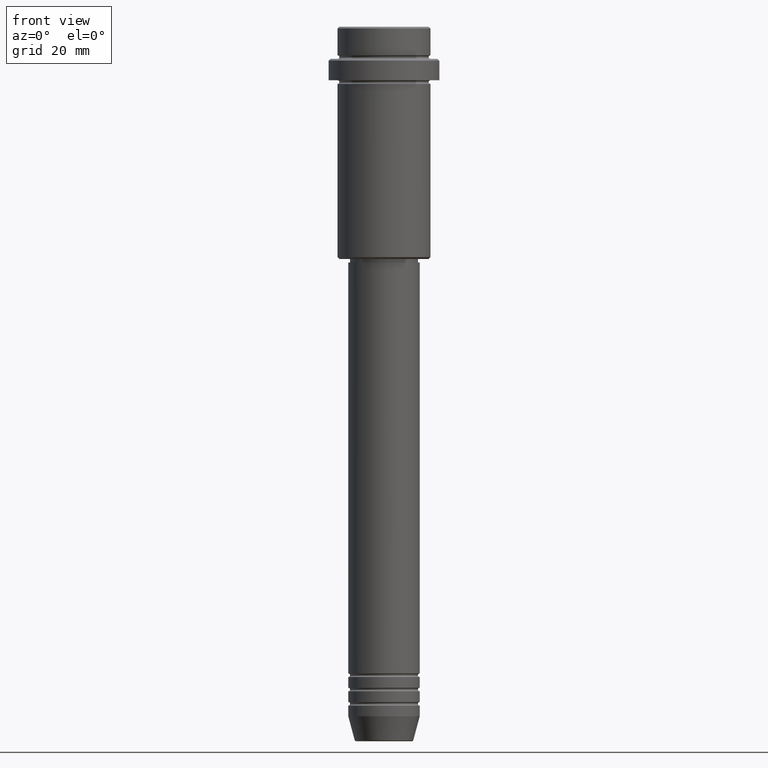
[diagram: clean part render]
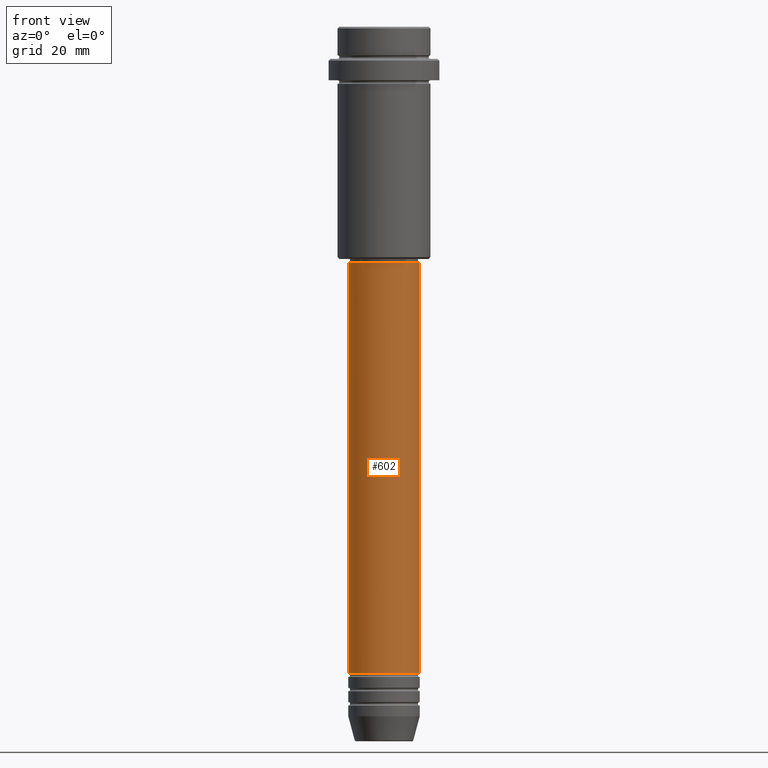
[diagram: same view with one face highlighted and labeled with its STEP entity id]
A machine part, front view. The second image highlights one B-rep face of the part: STEP entity #602.
In plain terms, the highlighted cylindrical surface (edge-blend (fillet) strip) has radius 10 mm, axis along (-0, -0, 1).
Its self-contained STEP definition (entity closure, byte-faithful):
#19 = VERTEX_POINT ( 'NONE', #1144 ) ;
#33 = ORIENTED_EDGE ( 'NONE', *, *, #294, .F. ) ;
#123 = CARTESIAN_POINT ( 'NONE',  ( -10.00000000000000178, 1.224646799147353454E-15, -66.00000000000000000 ) ) ;
#134 = EDGE_CURVE ( 'NONE', #565, #689, #1094, .T. ) ;
#159 = LINE ( 'NONE', #1037, #1024 ) ;
#218 = ORIENTED_EDGE ( 'NONE', *, *, #339, .F. ) ;
#282 = CARTESIAN_POINT ( 'NONE',  ( 10.00000000000000000, 0.000000000000000000, -180.9999999999999147 ) ) ;
#294 = EDGE_CURVE ( 'NONE', #565, #1334, #159, .T. ) ;
#314 = AXIS2_PLACEMENT_3D ( 'NONE', #1409, #422, #1414 ) ;
#339 = EDGE_CURVE ( 'NONE', #1334, #19, #1317, .T. ) ;
#372 = CARTESIAN_POINT ( 'NONE',  ( -10.00000000000000000, 1.224646799147353256E-15, -180.9999999999999147 ) ) ;
#411 = DIRECTION ( 'NONE',  ( -0.000000000000000000, -0.000000000000000000, 1.000000000000000000 ) ) ;
#422 = DIRECTION ( 'NONE',  ( -0.000000000000000000, -0.000000000000000000, 1.000000000000000000 ) ) ;
#440 = DIRECTION ( 'NONE',  ( -0.000000000000000000, -0.000000000000000000, 1.000000000000000000 ) ) ;
#505 = CARTESIAN_POINT ( 'NONE',  ( 0.000000000000000000, 0.000000000000000000, -66.00000000000000000 ) ) ;
#546 = AXIS2_PLACEMENT_3D ( 'NONE', #626, #411, #1258 ) ;
#565 = VERTEX_POINT ( 'NONE', #372 ) ;
#602 = ADVANCED_FACE ( 'NONE', ( #656 ), #666, .T. ) ;
#626 = CARTESIAN_POINT ( 'NONE',  ( 0.000000000000000000, 0.000000000000000000, 0.000000000000000000 ) ) ;
#654 = LINE ( 'NONE', #1315, #934 ) ;
#656 = FACE_OUTER_BOUND ( 'NONE', #766, .T. ) ;
#666 = CYLINDRICAL_SURFACE ( 'NONE', #546, 10.00000000000000178 ) ;
#689 = VERTEX_POINT ( 'NONE', #282 ) ;
#766 = EDGE_LOOP ( 'NONE', ( #33, #1234, #1015, #218 ) ) ;
#894 = EDGE_CURVE ( 'NONE', #689, #19, #654, .T. ) ;
#934 = VECTOR ( 'NONE', #440, 1000.000000000000000 ) ;
#1015 = ORIENTED_EDGE ( 'NONE', *, *, #894, .T. ) ;
#1024 = VECTOR ( 'NONE', #1041, 1000.000000000000000 ) ;
#1037 = CARTESIAN_POINT ( 'NONE',  ( -10.00000000000000178, 1.224646799147353454E-15, 0.000000000000000000 ) ) ;
#1041 = DIRECTION ( 'NONE',  ( -0.000000000000000000, -0.000000000000000000, 1.000000000000000000 ) ) ;
#1094 = CIRCLE ( 'NONE', #314, 10.00000000000000000 ) ;
#1144 = CARTESIAN_POINT ( 'NONE',  ( 10.00000000000000178, 0.000000000000000000, -66.00000000000000000 ) ) ;
#1173 = DIRECTION ( 'NONE',  ( -0.000000000000000000, -0.000000000000000000, 1.000000000000000000 ) ) ;
#1225 = AXIS2_PLACEMENT_3D ( 'NONE', #505, #1173, #1405 ) ;
#1234 = ORIENTED_EDGE ( 'NONE', *, *, #134, .T. ) ;
#1258 = DIRECTION ( 'NONE',  ( 1.000000000000000000, 0.000000000000000000, 0.000000000000000000 ) ) ;
#1315 = CARTESIAN_POINT ( 'NONE',  ( 10.00000000000000178, 0.000000000000000000, 0.000000000000000000 ) ) ;
#1317 = CIRCLE ( 'NONE', #1225, 10.00000000000000178 ) ;
#1334 = VERTEX_POINT ( 'NONE', #123 ) ;
#1405 = DIRECTION ( 'NONE',  ( 1.000000000000000000, 0.000000000000000000, 0.000000000000000000 ) ) ;
#1409 = CARTESIAN_POINT ( 'NONE',  ( 0.000000000000000000, 0.000000000000000000, -180.9999999999999147 ) ) ;
#1414 = DIRECTION ( 'NONE',  ( 1.000000000000000000, 0.000000000000000000, 0.000000000000000000 ) ) ;